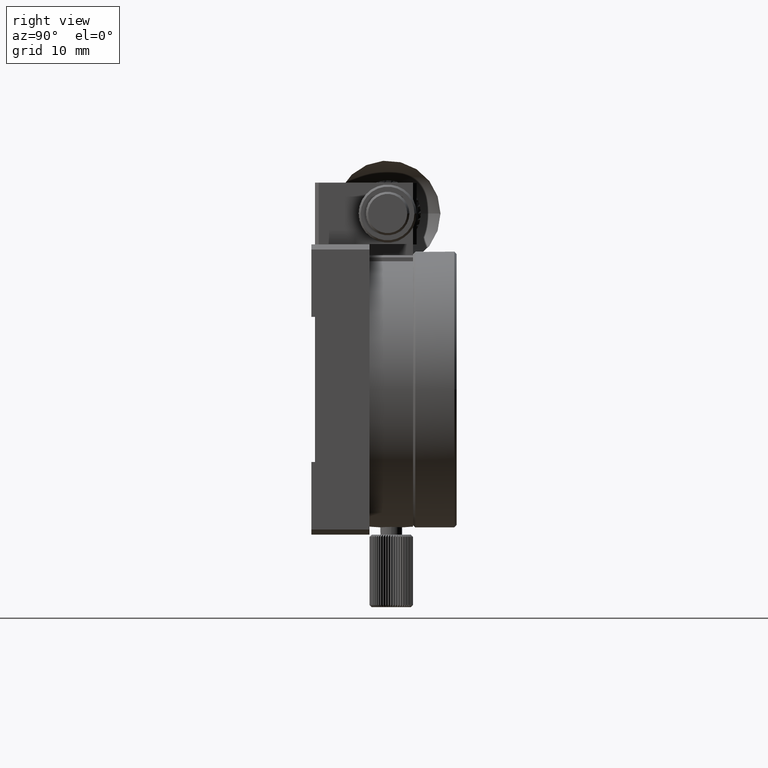
[diagram: clean part render]
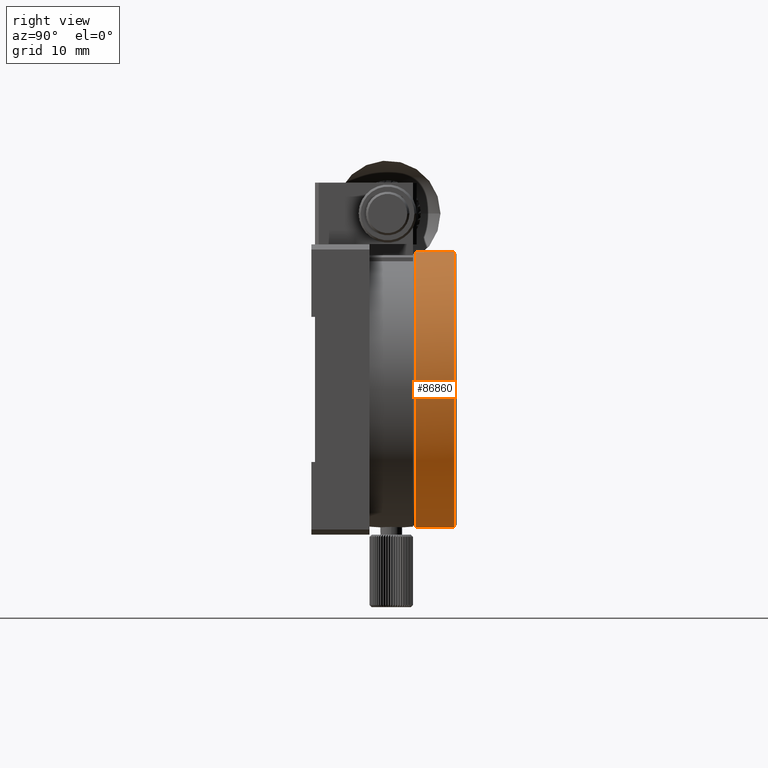
[diagram: same view with one face highlighted and labeled with its STEP entity id]
A machine part, right view. The second image highlights one B-rep face of the part: STEP entity #86860.
In plain terms, the highlighted cylindrical surface (bore or boss wall) has radius 19 mm, axis along (0, 1, 0).
Its self-contained STEP definition (entity closure, byte-faithful):
#8 = FACE_OUTER_BOUND ( 'NONE', #9245, .T. ) ;
#1128 = CARTESIAN_POINT ( 'NONE',  ( 2.483973969271204840, 16.00003783774247523, -27.36195725713311333 ) ) ;
#1581 = CARTESIAN_POINT ( 'NONE',  ( 2.044600798954248067, 18.49056150126294540, -26.21356837466399625 ) ) ;
#3797 = CARTESIAN_POINT ( 'NONE',  ( 2.024015963778209137, 18.41333017831755114, -26.15361382475798990 ) ) ;
#4254 = CARTESIAN_POINT ( 'NONE',  ( 3.070505540506375919, 17.69928474868626012, -28.62511402562497054 ) ) ;
#5650 = AXIS2_PLACEMENT_3D ( 'NONE', #23270, #19000, #12447 ) ;
#7523 = FACE_BOUND ( 'NONE', #73056, .T. ) ;
#8180 = CARTESIAN_POINT ( 'NONE',  ( 2.045194157252853806, 16.50737686490358769, -26.21528390675565845 ) ) ;
#8550 = CARTESIAN_POINT ( 'NONE',  ( 2.879772782222532523, 16.43983225225929701, -28.24001335021197789 ) ) ;
#8637 = CARTESIAN_POINT ( 'NONE',  ( 1.938917374905128721, 17.89138967451412299, -25.89940458620094077 ) ) ;
#9091 = CARTESIAN_POINT ( 'NONE',  ( 2.170045403647764548, 18.81013177009378623, -26.56698532369059507 ) ) ;
#9245 = EDGE_LOOP ( 'NONE', ( #19527 ) ) ;
#11269 = CARTESIAN_POINT ( 'NONE',  ( 1.974826398642294256, 16.83350547256883800, -26.00787375843492555 ) ) ;
#12447 = DIRECTION ( 'NONE',  ( 1.000000000000000000, 0.000000000000000000, 0.000000000000000000 ) ) ;
#15181 = CARTESIAN_POINT ( 'NONE',  ( 3.040049662784170437, 17.98492216792790188, -28.56513387990008823 ) ) ;
#15443 = VERTEX_POINT ( 'NONE', #53067 ) ;
#15644 = CARTESIAN_POINT ( 'NONE',  ( 2.748091819933633051, 16.19904154048948541, -27.96104703907992928 ) ) ;
#16097 = CARTESIAN_POINT ( 'NONE',  ( 2.298018639807342112, 18.96010336350194336, -26.90452265351788341 ) ) ;
#18273 = CARTESIAN_POINT ( 'NONE',  ( 2.170858682578960419, 16.18850853176273219, -26.56919732542614554 ) ) ;
#19000 = DIRECTION ( 'NONE',  ( -0.000000000000000000, 1.000000000000000000, -0.000000000000000000 ) ) ;
#19527 = ORIENTED_EDGE ( 'NONE', *, *, #80979, .F. ) ;
#19927 = VERTEX_POINT ( 'NONE', #20398 ) ;
#20398 = CARTESIAN_POINT ( 'NONE',  ( 39.00000000000000000, 19.69999999999999929, -20.00000000000000000 ) ) ;
#21843 = AXIS2_PLACEMENT_3D ( 'NONE', #72337, #52190, #73243 ) ;
#23270 = CARTESIAN_POINT ( 'NONE',  ( 20.00000000000000000, 19.69999999999999929, -20.00000000000000000 ) ) ;
#23402 = EDGE_CURVE ( 'NONE', #84644, #84644, #36416, .T. ) ;
#25292 = CARTESIAN_POINT ( 'NONE',  ( 1.927082604616030981, 17.39947209329106670, -25.86256401491081292 ) ) ;
#27639 = DIRECTION ( 'NONE',  ( 0.000000000000000000, 1.000000000000000000, 0.000000000000000000 ) ) ;
#28549 = CARTESIAN_POINT ( 'NONE',  ( 20.00000000000000000, 20.00000000000000000, -20.00000000000000000 ) ) ;
#29674 = CARTESIAN_POINT ( 'NONE',  ( 2.636873513792686197, 16.07672243403872514, -27.71557479338375884 ) ) ;
#30028 = AXIS2_PLACEMENT_3D ( 'NONE', #28549, #27639, #85450 ) ;
#30125 = CARTESIAN_POINT ( 'NONE',  ( 2.816831747930223173, 16.30771500030088106, -28.10834968615348828 ) ) ;
#30583 = CARTESIAN_POINT ( 'NONE',  ( 1.989039415060334770, 18.25024906397228364, -26.05047634343803864 ) ) ;
#31718 = ORIENTED_EDGE ( 'NONE', *, *, #23402, .T. ) ;
#32323 = CARTESIAN_POINT ( 'NONE',  ( 1.926993339657842697, 17.69668930284300146, -25.86228882710725330 ) ) ;
#32781 = CARTESIAN_POINT ( 'NONE',  ( 2.815916929648721645, 18.69392729564168931, -28.10641191211646728 ) ) ;
#36416 = B_SPLINE_CURVE_WITH_KNOTS ( 'NONE', 3,
 ( #73507, #44565, #68227, #72609, #87484, #80489, #4254, #39286, #15181, #75237, #51534, #89204, #32781, #61209, #67763, #66051, #58087, #73047, #45026, #89677, #16097, #9091, #37585, #1581, #3797, #30583, #54190, #8637, #32323, #25292, #43645, #53721, #72145, #11269, #59023, #82212, #8180, #36672, #18273, #46738, #51076, #1128, #65134, #39747, #29674, #79566, #15644, #30125, #44112, #37120 ),
 .UNSPECIFIED., .T., .F.,
 ( 4, 2, 2, 2, 2, 2, 2, 2, 2, 2, 2, 2, 2, 2, 2, 2, 2, 2, 2, 2, 2, 2, 2, 2, 4 ),
 ( 0.000000000000000000, 0.0005912904868249074927, 0.001182580973649814985, 0.001478226217062268786, 0.001773871460474722370, 0.002365161947299629537, 0.002660807190712083554, 0.002956452434124537572, 0.003252097677536990722, 0.003547742920949444739, 0.004139033407774352774, 0.004730323894599260809, 0.005025969138011714826, 0.005321614381424170578, 0.005912904868249087287, 0.006208550111661547376, 0.006504195355074005730, 0.006799840598486464951, 0.007095485841898924173, 0.007686776328723841749, 0.008278066815548759325, 0.008573712058961213342, 0.008869357302373667359, 0.009165002545786121377, 0.009460647789198573659 ),
 .UNSPECIFIED. ) ;
#36672 = CARTESIAN_POINT ( 'NONE',  ( 2.113949927273944152, 16.30011620730218524, -26.41158641564065590 ) ) ;
#37120 = CARTESIAN_POINT ( 'NONE',  ( 2.879772782222532523, 16.43983225225930056, -28.24001335021198500 ) ) ;
#37585 = CARTESIAN_POINT ( 'NONE',  ( 2.113233151580586444, 18.69825789222078072, -26.40958199670152240 ) ) ;
#39286 = CARTESIAN_POINT ( 'NONE',  ( 3.052968322579820537, 17.89144367912908962, -28.59060486424413483 ) ) ;
#39747 = CARTESIAN_POINT ( 'NONE',  ( 2.599084483478791174, 16.04832279199394307, -27.63003181460722502 ) ) ;
#43645 = CARTESIAN_POINT ( 'NONE',  ( 1.930113488629168428, 17.30203524632609202, -25.87193072139120176 ) ) ;
#44112 = CARTESIAN_POINT ( 'NONE',  ( 2.849362412416141410, 16.36975579236911216, -28.17682990393168652 ) ) ;
#44565 = CARTESIAN_POINT ( 'NONE',  ( 2.940593521835315638, 16.57998517203969158, -28.36638024277257841 ) ) ;
#45026 = CARTESIAN_POINT ( 'NONE',  ( 2.482889238019782674, 19.00014062032223094, -27.35937529999764806 ) ) ;
#45917 = CIRCLE ( 'NONE', #5650, 19.00000000000000000 ) ;
#46738 = CARTESIAN_POINT ( 'NONE',  ( 2.298987463025041755, 16.03917359063923342, -26.90701011891623651 ) ) ;
#51076 = CARTESIAN_POINT ( 'NONE',  ( 2.371582408524778973, 15.99992465870265335, -27.09064337565085623 ) ) ;
#51534 = CARTESIAN_POINT ( 'NONE',  ( 2.939767278870228040, 18.42241054919556120, -28.36469737852685924 ) ) ;
#52190 = DIRECTION ( 'NONE',  ( 0.000000000000000000, 1.000000000000000000, 0.000000000000000000 ) ) ;
#53067 = CARTESIAN_POINT ( 'NONE',  ( 1.000000000000000888, 14.30000000000000249, -20.00000000000000000 ) ) ;
#53721 = CARTESIAN_POINT ( 'NONE',  ( 1.942022568502269619, 17.11030325601197788, -25.90845326749377620 ) ) ;
#54190 = CARTESIAN_POINT ( 'NONE',  ( 1.974444316185429482, 18.16406237518921429, -26.00672642170828652 ) ) ;
#56502 = CYLINDRICAL_SURFACE ( 'NONE', #30028, 19.00000000000000000 ) ;
#58087 = CARTESIAN_POINT ( 'NONE',  ( 2.598029826869616699, 18.95238494523966466, -27.62762744404317417 ) ) ;
#59023 = CARTESIAN_POINT ( 'NONE',  ( 1.989468315115699548, 16.74741555938467386, -26.05175446766851266 ) ) ;
#61209 = CARTESIAN_POINT ( 'NONE',  ( 2.747094495244722268, 18.80233361418097360, -27.95888664962772197 ) ) ;
#62407 = ORIENTED_EDGE ( 'NONE', *, *, #67230, .T. ) ;
#64932 = FACE_OUTER_BOUND ( 'NONE', #67198, .T. ) ;
#65134 = CARTESIAN_POINT ( 'NONE',  ( 2.522747673894959242, 16.00988229475993307, -27.45351577677830690 ) ) ;
#66051 = CARTESIAN_POINT ( 'NONE',  ( 2.635827800646552976, 18.92414527929901880, -27.71322117343799718 ) ) ;
#66528 = CIRCLE ( 'NONE', #21843, 19.00000000000000000 ) ;
#67198 = EDGE_LOOP ( 'NONE', ( #62407 ) ) ;
#67230 = EDGE_CURVE ( 'NONE', #15443, #15443, #66528, .T. ) ;
#67763 = CARTESIAN_POINT ( 'NONE',  ( 2.710397996360110362, 18.84922262444868224, -27.87895421962224418 ) ) ;
#68227 = CARTESIAN_POINT ( 'NONE',  ( 2.990201652000571642, 16.74737824293427479, -28.46595191166349181 ) ) ;
#72145 = CARTESIAN_POINT ( 'NONE',  ( 1.951050810821572279, 17.01499866835747099, -25.93606465790503179 ) ) ;
#72337 = CARTESIAN_POINT ( 'NONE',  ( 20.00000000000000000, 14.30000000000000249, -20.00000000000000000 ) ) ;
#72609 = CARTESIAN_POINT ( 'NONE',  ( 3.057304793117614938, 17.10865186229354507, -28.59945700244425737 ) ) ;
#73047 = CARTESIAN_POINT ( 'NONE',  ( 2.521635779512203523, 18.99049588387838483, -27.45090937454028435 ) ) ;
#73056 = EDGE_LOOP ( 'NONE', ( #31718 ) ) ;
#73243 = DIRECTION ( 'NONE',  ( -1.000000000000000000, 0.000000000000000000, 0.000000000000000000 ) ) ;
#73507 = CARTESIAN_POINT ( 'NONE',  ( 2.879772782222532523, 16.43983225225930056, -28.24001335021198500 ) ) ;
#75237 = CARTESIAN_POINT ( 'NONE',  ( 2.989042590635687446, 18.25746910758052621, -28.46363180334252618 ) ) ;
#79566 = CARTESIAN_POINT ( 'NONE',  ( 2.711460372369313809, 16.15203295870653832, -27.88128500386682518 ) ) ;
#80489 = CARTESIAN_POINT ( 'NONE',  ( 3.075045374831072653, 17.59984339157549016, -28.63399739122639787 ) ) ;
#80979 = EDGE_CURVE ( 'NONE', #19927, #19927, #45917, .T. ) ;
#82212 = CARTESIAN_POINT ( 'NONE',  ( 2.024562273664405332, 16.58446767006534728, -26.15521098385734788 ) ) ;
#84644 = VERTEX_POINT ( 'NONE', #8550 ) ;
#85450 = DIRECTION ( 'NONE',  ( -1.000000000000000000, 0.000000000000000000, 0.000000000000000000 ) ) ;
#86860 = ADVANCED_FACE ( 'NONE', ( #64932, #7523, #8 ), #56502, .T. ) ;
#87484 = CARTESIAN_POINT ( 'NONE',  ( 3.075216362815417437, 17.30605870619804065, -28.63433256814987971 ) ) ;
#89204 = CARTESIAN_POINT ( 'NONE',  ( 2.848475041666776786, 18.63203785376208899, -28.17496894716014921 ) ) ;
#89677 = CARTESIAN_POINT ( 'NONE',  ( 2.370585796963089020, 18.99971400706373359, -27.08816279952388228 ) ) ;